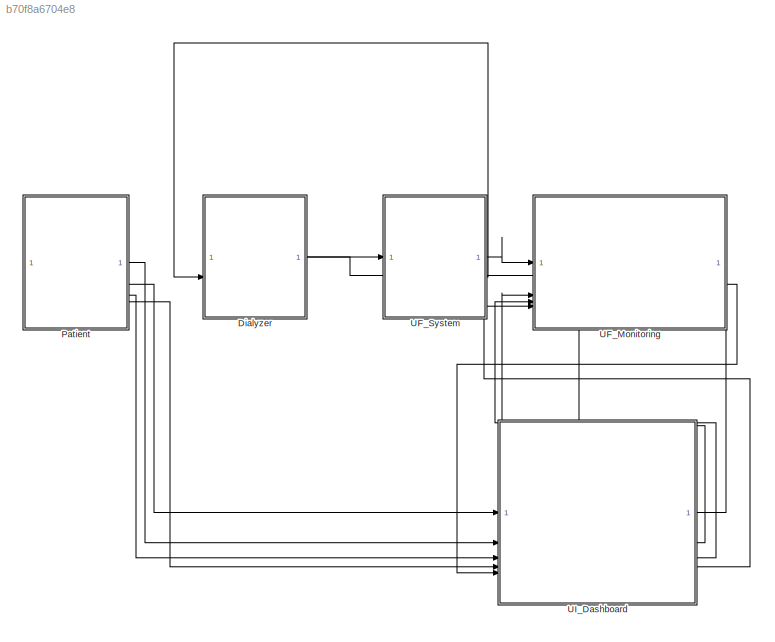
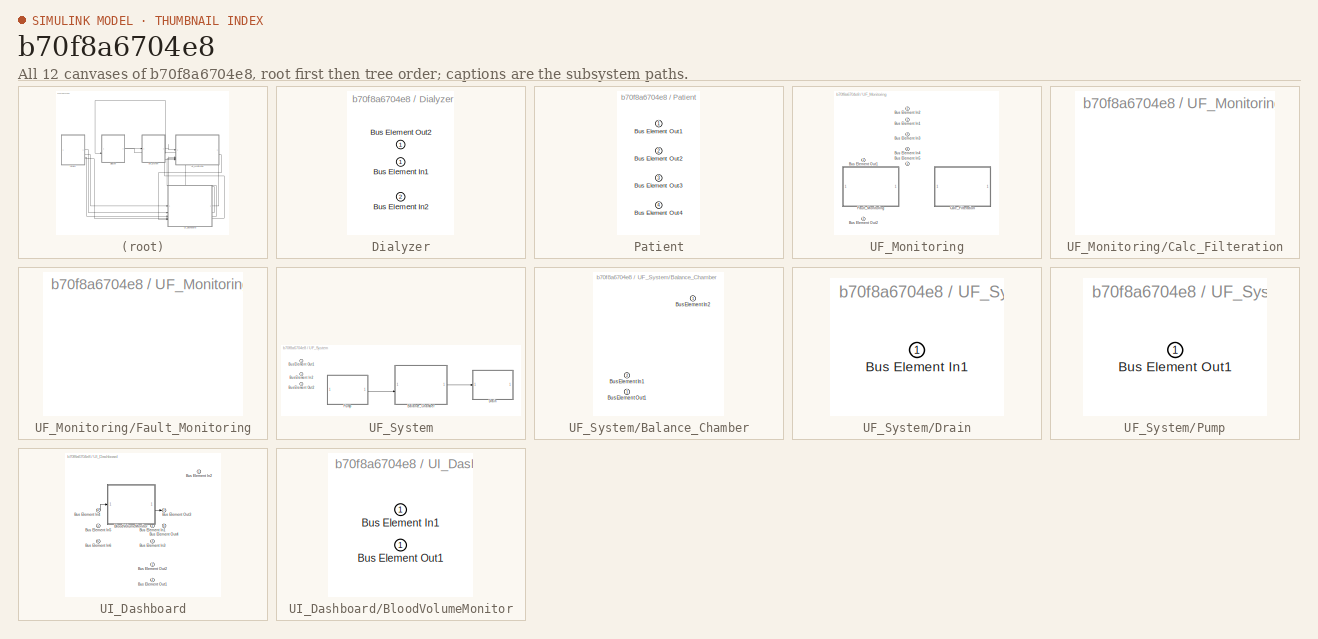
[diagram: thumbnail index - all 12 canvases of the model, root first then tree order]
MODEL slx_b70f8a6704e8
KIND model
CONFIG AbsTol = auto
CONFIG EnableMultiTasking = off
CONFIG FixedStep = auto
CONFIG MaxStep = auto
CONFIG MinStep = auto
CONFIG RelTol = 1e-3
CONFIG SampleTimeConstraint = Unconstrained
CONFIG SolverName = VariableStepAuto
CONFIG StartTime = 0.0
CONFIG StopTime = 10.0
BLOCK [SubSystem] Dialyzer
  PortSchema = {"entries":[{"content":{"headerSize":26,"margin":15,"minimumSpacing":25,"sides":[{"content":{"connectorIds":["In2"]},"type":"ConnectorPlacement.EquallySpacedRectSide","uuid":"c448f8e9-f718-4d55-8ae9-400f94c3ed78"},{"content":{"connectorIds":["Out1"],"side":"RIGHT"},"type":"ConnectorPlacement.EquallySpacedRectSide","uuid":"ddea2424-6372-4e6c-88b3-edcc675d5c44"},{"content":{"side":"TOP"},"type":"Con...<+419ch>
BLOCK [Inport] Dialyzer/Bus Element In1
BLOCK [Inport] Dialyzer/Bus Element In2
  Port = 2
BLOCK [Outport] Dialyzer/Bus Element Out2
BLOCK [SubSystem] Patient
  PortSchema = {"entries":[{"content":{"headerSize":26,"margin":15,"minimumSpacing":25,"sides":[{"content":{},"type":"ConnectorPlacement.EquallySpacedRectSide","uuid":"c448f8e9-f718-4d55-8ae9-400f94c3ed78"},{"content":{"connectorIds":["Out2","Out1","Out3","Out4"],"side":"RIGHT"},"type":"ConnectorPlacement.EquallySpacedRectSide","uuid":"ddea2424-6372-4e6c-88b3-edcc675d5c44"},{"content":{"side":"TOP"},"type":"Conn...<+395ch>
BLOCK [Outport] Patient/Bus Element Out1
BLOCK [Outport] Patient/Bus Element Out2
  Port = 2
BLOCK [Outport] Patient/Bus Element Out3
  Port = 3
BLOCK [Outport] Patient/Bus Element Out4
  Port = 4
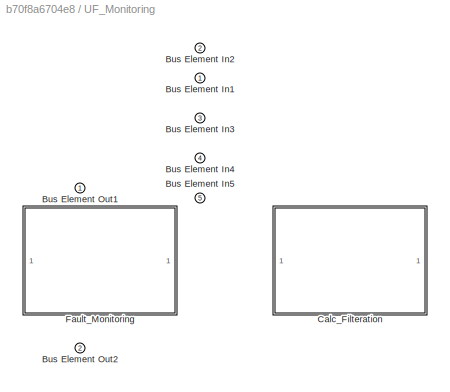
BLOCK [SubSystem] UF_Monitoring
  PortSchema = {"entries":[{"content":{"headerSize":26,"margin":15,"minimumSpacing":25,"sides":[{"content":{"connectorIds":["In1","In3","In4","In5"]},"type":"ConnectorPlacement.EquallySpacedRectSide","uuid":"c448f8e9-f718-4d55-8ae9-400f94c3ed78"},{"content":{"connectorIds":["In2","Out2"],"side":"RIGHT"},"type":"ConnectorPlacement.EquallySpacedRectSide","uuid":"ddea2424-6372-4e6c-88b3-edcc675d5c44"},{"content":{"...<+444ch>
BLOCK [Inport] UF_Monitoring/Bus Element In1
BLOCK [Inport] UF_Monitoring/Bus Element In2
  Port = 2
BLOCK [Inport] UF_Monitoring/Bus Element In3
  Port = 3
BLOCK [Inport] UF_Monitoring/Bus Element In4
  Port = 4
BLOCK [Inport] UF_Monitoring/Bus Element In5
  Port = 5
BLOCK [Outport] UF_Monitoring/Bus Element Out1
BLOCK [Outport] UF_Monitoring/Bus Element Out2
  Port = 2
BLOCK [SubSystem] UF_Monitoring/Calc_Filteration
  PortSchema = {"entries":[{"content":{"headerSize":26,"margin":15,"minimumSpacing":25,"sides":[{"content":{},"type":"ConnectorPlacement.EquallySpacedRectSide","uuid":"c448f8e9-f718-4d55-8ae9-400f94c3ed78"},{"content":{"side":"RIGHT"},"type":"ConnectorPlacement.EquallySpacedRectSide","uuid":"ddea2424-6372-4e6c-88b3-edcc675d5c44"},{"content":{"side":"TOP"},"type":"ConnectorPlacement.EquallySpacedRectSide","uuid":...<+224ch>
BLOCK [SubSystem] UF_Monitoring/Fault_Monitoring
  PortSchema = {"entries":[{"content":{"headerSize":26,"margin":15,"minimumSpacing":25,"sides":[{"content":{},"type":"ConnectorPlacement.EquallySpacedRectSide","uuid":"a687e012-4840-413d-ae7b-c05f2b55ca05"},{"content":{"side":"RIGHT"},"type":"ConnectorPlacement.EquallySpacedRectSide","uuid":"6a695777-1bf4-4cf6-ae1b-4fd6cbf201ea"},{"content":{"side":"TOP"},"type":"ConnectorPlacement.EquallySpacedRectSide","uuid":...<+224ch>
BLOCK [SubSystem] UF_System
  PortSchema = {"entries":[{"content":{"headerSize":26,"margin":15,"minimumSpacing":25,"sides":[{"content":{"connectorIds":["In1"]},"type":"ConnectorPlacement.EquallySpacedRectSide","uuid":"c448f8e9-f718-4d55-8ae9-400f94c3ed78"},{"content":{"connectorIds":["Out1","Out2"],"side":"RIGHT"},"type":"ConnectorPlacement.EquallySpacedRectSide","uuid":"ddea2424-6372-4e6c-88b3-edcc675d5c44"},{"content":{"side":"TOP"},"typ...<+277ch>
BLOCK [SubSystem] UF_System/Balance_Chamber
  PortSchema = {"entries":[{"content":{"headerSize":26,"margin":15,"minimumSpacing":25,"sides":[{"content":{"connectorIds":["In1","In2"]},"type":"ConnectorPlacement.EquallySpacedRectSide","uuid":"c448f8e9-f718-4d55-8ae9-400f94c3ed78"},{"content":{"connectorIds":["Out1"],"side":"RIGHT"},"type":"ConnectorPlacement.EquallySpacedRectSide","uuid":"ddea2424-6372-4e6c-88b3-edcc675d5c44"},{"content":{"side":"TOP"},"type...<+276ch>
BLOCK [Inport] UF_System/Balance_Chamber/Bus Element In1
  Port = 2
BLOCK [Inport] UF_System/Balance_Chamber/Bus Element In2
BLOCK [Outport] UF_System/Balance_Chamber/Bus Element Out1
BLOCK [Inport] UF_System/Bus Element In2
BLOCK [Outport] UF_System/Bus Element Out1
BLOCK [Outport] UF_System/Bus Element Out2
  Port = 2
BLOCK [SubSystem] UF_System/Drain
  PortSchema = {"entries":[{"content":{"headerSize":26,"margin":15,"minimumSpacing":25,"sides":[{"content":{"connectorIds":["In1"]},"type":"ConnectorPlacement.EquallySpacedRectSide","uuid":"c448f8e9-f718-4d55-8ae9-400f94c3ed78"},{"content":{"side":"RIGHT"},"type":"ConnectorPlacement.EquallySpacedRectSide","uuid":"ddea2424-6372-4e6c-88b3-edcc675d5c44"},{"content":{"side":"TOP"},"type":"ConnectorPlacement.EquallyS...<+246ch>
BLOCK [Inport] UF_System/Drain/Bus Element In1
BLOCK [SubSystem] UF_System/Pump
  PortSchema = {"entries":[{"content":{"headerSize":26,"margin":15,"minimumSpacing":25,"sides":[{"content":{},"type":"ConnectorPlacement.EquallySpacedRectSide","uuid":"c448f8e9-f718-4d55-8ae9-400f94c3ed78"},{"content":{"connectorIds":["Out1"],"side":"RIGHT"},"type":"ConnectorPlacement.EquallySpacedRectSide","uuid":"ddea2424-6372-4e6c-88b3-edcc675d5c44"},{"content":{"side":"TOP"},"type":"ConnectorPlacement.Equall...<+248ch>
BLOCK [Outport] UF_System/Pump/Bus Element Out1
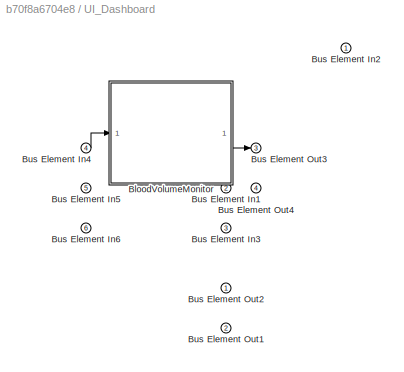
BLOCK [SubSystem] UI_Dashboard
  PortSchema = {"entries":[{"content":{"headerSize":26,"margin":15,"minimumSpacing":25,"sides":[{"content":{"connectorIds":["In1","In2","In3","In4","In5","In6"]},"type":"ConnectorPlacement.EquallySpacedRectSide","uuid":"c448f8e9-f718-4d55-8ae9-400f94c3ed78"},{"content":{"connectorIds":["Out1","Out2","Out3","Out4"],"side":"RIGHT"},"type":"ConnectorPlacement.EquallySpacedRectSide","uuid":"ddea2424-6372-4e6c-88b3-e...<+321ch>
BLOCK [SubSystem] UI_Dashboard/BloodVolumeMonitor
  PortSchema = {"entries":[{"content":{"headerSize":26,"margin":15,"minimumSpacing":25,"sides":[{"content":{"connectorIds":["In1"]},"type":"ConnectorPlacement.EquallySpacedRectSide","uuid":"26d21b59-92b1-4efd-afff-4bac4af91e92"},{"content":{"connectorIds":["Out1"],"side":"RIGHT"},"type":"ConnectorPlacement.EquallySpacedRectSide","uuid":"874338f8-5b85-4580-9930-3f474badb449"},{"content":{"side":"TOP"},"type":"Con...<+270ch>
BLOCK [Inport] UI_Dashboard/BloodVolumeMonitor/Bus Element In1
BLOCK [Outport] UI_Dashboard/BloodVolumeMonitor/Bus Element Out1
BLOCK [Inport] UI_Dashboard/Bus Element In1
  Port = 2
BLOCK [Inport] UI_Dashboard/Bus Element In2
BLOCK [Inport] UI_Dashboard/Bus Element In3
  Port = 3
BLOCK [Inport] UI_Dashboard/Bus Element In4
  Port = 4
BLOCK [Inport] UI_Dashboard/Bus Element In5
  Port = 5
BLOCK [Inport] UI_Dashboard/Bus Element In6
  Port = 6
BLOCK [Outport] UI_Dashboard/Bus Element Out1
  Port = 2
BLOCK [Outport] UI_Dashboard/Bus Element Out2
BLOCK [Outport] UI_Dashboard/Bus Element Out3
  Port = 3
BLOCK [Outport] UI_Dashboard/Bus Element Out4
  Port = 4
LINE Dialyzer:1 -> UF_System:1
LINE Patient:1 -> UI_Dashboard:2
LINE Patient:2 -> UI_Dashboard:1
LINE Patient:3 -> UI_Dashboard:3
LINE Patient:4 -> UI_Dashboard:4
NET UF_Monitoring:1 -> Dialyzer:1, UI_Dashboard:6
LINE UF_Monitoring:2 -> UI_Dashboard:5
LINE UF_System/Balance_Chamber:1 -> UF_System/Drain:1
LINE UF_System/Pump:1 -> UF_System/Balance_Chamber:2
LINE UF_System:1 -> UF_Monitoring:1
LINE UF_System:2 -> Dialyzer:2
LINE UI_Dashboard/BloodVolumeMonitor:1 -> UI_Dashboard/Bus Element Out3:1
LINE UI_Dashboard/Bus Element In4:1 -> UI_Dashboard/BloodVolumeMonitor:1
LINE UI_Dashboard:1 -> UF_Monitoring:2
LINE UI_Dashboard:2 -> UF_Monitoring:3
LINE UI_Dashboard:3 -> UF_Monitoring:4
LINE UI_Dashboard:4 -> UF_Monitoring:5
note: NET lines group one-source signal fan-out (src -> all destinations, sorted); 1:1 wires keep LINE
